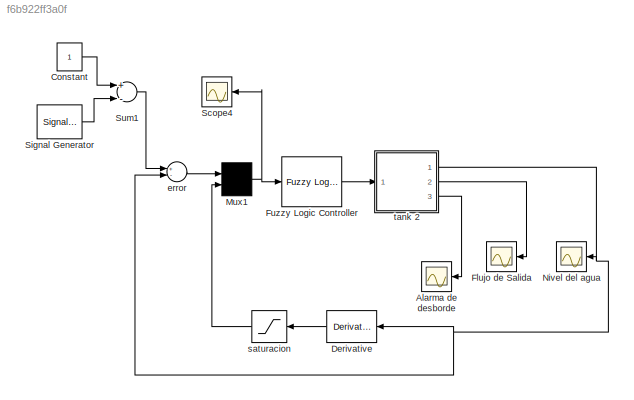
MODEL slx_f6b922ff3a0f
KIND model
CONFIG AbsTol = auto
CONFIG FixedStep = auto
CONFIG MaxStep = auto
CONFIG MinStep = auto
CONFIG RelTol = 1e-3
CONFIG SampleTimeConstraint = Unconstrained
CONFIG Solver = VariableStepAuto
CONFIG SolverMode = Auto
CONFIG SolverName = VariableStepAuto
CONFIG StartTime = 0.0
CONFIG StopTime = 5000
BLOCK [Scope] Alarma de desborde
  Ports = [1]
  ScopeSpecificationString = Simulink.scopes.TimeScopeBlockCfg('CurrentConfiguration', extmgr.ConfigurationSet(extmgr.Configuration('Core','General UI',true),extmgr.Configuration('Core','Source UI',true),extmgr.Configuration('Sources','WiredSimulink',true,'DataLoggingSaveFormat','Array','DataLoggingLimitDataPoints',true,'DataLoggingDecimation','1','DataLoggingDecimateData',true,'DataLoggingVariableName','ScopeData4'),extmgr.C...<+1753ch>
BLOCK [Constant] Constant
BLOCK [Derivative] Derivative
BLOCK [Scope] Flujo de Salida
  Ports = [1]
  ScopeSpecificationString = Simulink.scopes.TimeScopeBlockCfg('CurrentConfiguration', extmgr.ConfigurationSet(extmgr.Configuration('Core','General UI',true),extmgr.Configuration('Core','Source UI',true),extmgr.Configuration('Sources','WiredSimulink',true,'DataLoggingSaveFormat','Array','DataLoggingLimitDataPoints',true,'DataLoggingDecimation','1','DataLoggingDecimateData',true,'DataLoggingVariableName','ScopeData5'),extmgr.C...<+1753ch>
BLOCK [Reference] Fuzzy Logic Controller  REF=fuzblock/Fuzzy Logic   (lib defined in mdl_858b3b3e7478)
Controller
  Ports = [1, 1]
  SourceBlock = fuzblock/Fuzzy Logic \nController
  SourceType = FIS
BLOCK [Mux] Mux1
  Inputs = 2
  Ports = [2, 1]
BLOCK [Scope] Nivel del agua
  Ports = [1]
  ScopeSpecificationString = Simulink.scopes.TimeScopeBlockCfg('CurrentConfiguration', extmgr.ConfigurationSet(extmgr.Configuration('Core','General UI',true),extmgr.Configuration('Core','Source UI',true),extmgr.Configuration('Sources','WiredSimulink',true,'DataLoggingSaveFormat','Array','DataLoggingLimitDataPoints',true,'DataLoggingDecimation','1','DataLoggingDecimateData',true,'DataLoggingVariableName','ScopeData6'),extmgr.C...<+1771ch>
BLOCK [Scope] Scope4
  Ports = [1]
  ScopeSpecificationString = Simulink.scopes.TimeScopeBlockCfg('CurrentConfiguration', extmgr.ConfigurationSet(extmgr.Configuration('Core','General UI',true),extmgr.Configuration('Core','Source UI',true),extmgr.Configuration('Sources','WiredSimulink',true,'DataLoggingSaveFormat','Array','DataLoggingLimitDataPoints',true,'DataLoggingDecimation','1','DataLoggingDecimateData',true,'DataLoggingVariableName','ScopeData3'),extmgr.C...<+1763ch>
BLOCK [SignalGenerator] Signal Generator
  Amplitude = 0.5
  Frequency = 0.5
  Ports = [0, 1]
  Units = rad/sec
  WaveForm = square
BLOCK [Sum] Sum1
  Inputs = +-
  Ports = [2, 1]
BLOCK [Sum] error
  Inputs = +-
  Ports = [2, 1]
BLOCK [Saturate] saturacion
  InputPortMap = u0
  LowerLimit = -0.1
  Ports = [1, 1]
  UpperLimit = 0.1
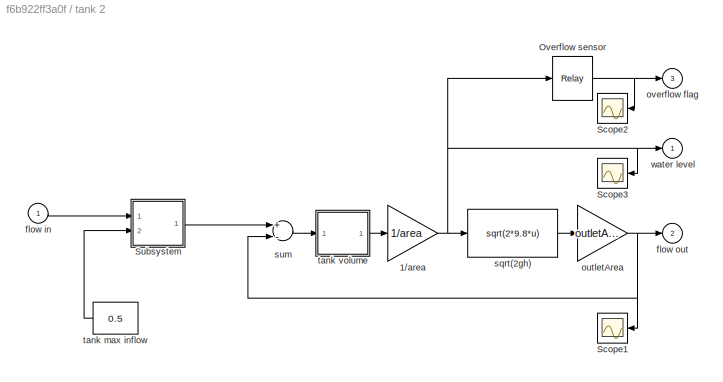
BLOCK [SubSystem] tank 2
  Ports = [1, 3]
  RequestExecContextInheritance = off
  ShowPortLabels = none
  Variant = off
BLOCK [Gain] tank 2/1//area
  Gain = 1/area
BLOCK [Relay] tank 2/Overflow sensor
  OffSwitchValue = ht - overflowLimit
  OnSwitchValue = ht - overflowLimit
BLOCK [Scope] tank 2/Scope1
  Ports = [1]
  ScopeSpecificationString = Simulink.scopes.TimeScopeBlockCfg('CurrentConfiguration', extmgr.ConfigurationSet(extmgr.Configuration('Core','General UI',true),extmgr.Configuration('Core','Source UI',true),extmgr.Configuration('Sources','WiredSimulink',true,'DataLoggingSaveFormat','Array','DataLoggingLimitDataPoints',true,'DataLoggingDecimation','1','DataLoggingDecimateData',true,'DataLoggingVariableName','ScopeData1'),extmgr.C...<+1756ch>
BLOCK [Scope] tank 2/Scope2
  Ports = [1]
  ScopeSpecificationString = Simulink.scopes.TimeScopeBlockCfg('CurrentConfiguration', extmgr.ConfigurationSet(extmgr.Configuration('Core','General UI',true),extmgr.Configuration('Core','Source UI',true),extmgr.Configuration('Sources','WiredSimulink',true,'DataLoggingSaveFormat','Array','DataLoggingLimitDataPoints',true,'DataLoggingDecimation','1','DataLoggingDecimateData',true),extmgr.Configuration('Visuals','Time Domain',tr...<+1722ch>
BLOCK [Scope] tank 2/Scope3
  Ports = [1]
  ScopeSpecificationString = Simulink.scopes.TimeScopeBlockCfg('CurrentConfiguration', extmgr.ConfigurationSet(extmgr.Configuration('Core','General UI',true),extmgr.Configuration('Core','Source UI',true),extmgr.Configuration('Sources','WiredSimulink',true,'DataLoggingSaveFormat','Array','DataLoggingLimitDataPoints',true,'DataLoggingDecimation','1','DataLoggingDecimateData',true,'DataLoggingVariableName','ScopeData2'),extmgr.C...<+1750ch>
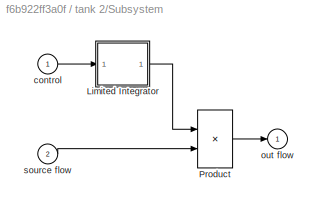
BLOCK [SubSystem] tank 2/Subsystem
  Ports = [2, 1]
  RequestExecContextInheritance = off
  ShowPortLabels = none
  Variant = off
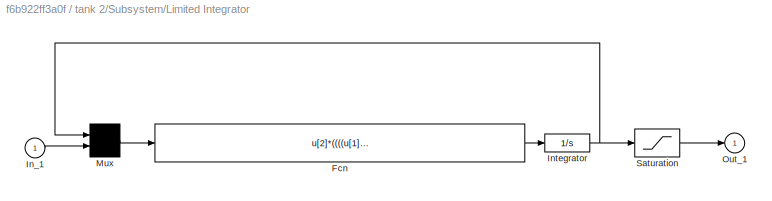
BLOCK [SubSystem] tank 2/Subsystem/Limited Integrator
  Ports = [1, 1]
  RequestExecContextInheritance = off
  ShowPortLabels = none
  Variant = off
BLOCK [Fcn] tank 2/Subsystem/Limited Integrator/Fcn
  Expr = u[2]*((((u[1]>lb)+(u[2]>=0))>0) * (((u[1]<ub)+(u[2]<=0))>0))
BLOCK [Inport] tank 2/Subsystem/Limited Integrator/In_1
  IconDisplay = Port number
BLOCK [Integrator] tank 2/Subsystem/Limited Integrator/Integrator
  InitialCondition = xi
  Ports = [1, 1]
BLOCK [Mux] tank 2/Subsystem/Limited Integrator/Mux
  Inputs = 2
  Ports = [2, 1]
BLOCK [Outport] tank 2/Subsystem/Limited Integrator/Out_1
  IconDisplay = Port number
  InitialOutput = 0
BLOCK [Saturate] tank 2/Subsystem/Limited Integrator/Saturation
  InputPortMap = u0
  LowerLimit = lb
  Ports = [1, 1]
  UpperLimit = ub
BLOCK [Product] tank 2/Subsystem/Product
  Ports = [2, 1]
BLOCK [Inport] tank 2/Subsystem/control
  IconDisplay = Port number
BLOCK [Outport] tank 2/Subsystem/out flow
  IconDisplay = Port number
  InitialOutput = 0
BLOCK [Inport] tank 2/Subsystem/source flow
  IconDisplay = Port number
  Port = 2
BLOCK [Inport] tank 2/flow in
  IconDisplay = Port number
BLOCK [Outport] tank 2/flow out
  IconDisplay = Port number
  InitialOutput = 0
  Port = 2
BLOCK [Gain] tank 2/outletArea
  Gain = outletArea
BLOCK [Outport] tank 2/overflow flag
  IconDisplay = Port number
  InitialOutput = 0
  Port = 3
BLOCK [Fcn] tank 2/sqrt(2gh)
  Expr = sqrt(2*9.8*u)
BLOCK [Sum] tank 2/sum
  Inputs = +-
  Ports = [2, 1]
BLOCK [Constant] tank 2/tank max inflow
  Value = 0.5
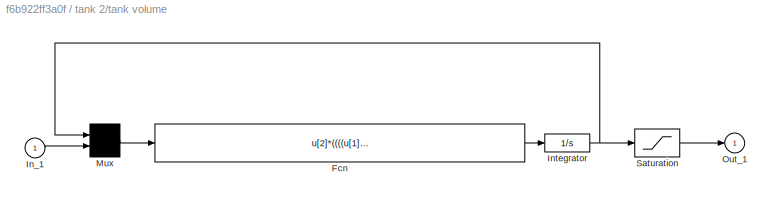
BLOCK [SubSystem] tank 2/tank volume
  Ports = [1, 1]
  RequestExecContextInheritance = off
  ShowPortLabels = none
  Variant = off
BLOCK [Fcn] tank 2/tank volume/Fcn
  Expr = u[2]*((((u[1]>lb)+(u[2]>=0))>0) * (((u[1]<ub)+(u[2]<=0))>0))
BLOCK [Inport] tank 2/tank volume/In_1
  IconDisplay = Port number
BLOCK [Integrator] tank 2/tank volume/Integrator
  InitialCondition = xi
  Ports = [1, 1]
BLOCK [Mux] tank 2/tank volume/Mux
  Inputs = 2
  Ports = [2, 1]
BLOCK [Outport] tank 2/tank volume/Out_1
  IconDisplay = Port number
  InitialOutput = 0
BLOCK [Saturate] tank 2/tank volume/Saturation
  InputPortMap = u0
  LowerLimit = lb
  Ports = [1, 1]
  UpperLimit = ub
BLOCK [Outport] tank 2/water level
  IconDisplay = Port number
  InitialOutput = 0
LINE Constant:1 -> Sum1:1
LINE Derivative:1 -> saturacion:1
LINE Fuzzy Logic Controller:1 -> tank 2:1
NET Mux1:1 -> Fuzzy Logic Controller:1, Scope4:1
LINE Signal Generator:1 -> Sum1:2
LINE Sum1:1 -> error:1
LINE error:1 -> Mux1:1
LINE saturacion:1 -> Mux1:2
NET tank 2/1//area:1 -> tank 2/Overflow sensor:1, tank 2/Scope3:1, tank 2/sqrt(2gh):1, tank 2/water level:1
NET tank 2/Overflow sensor:1 -> tank 2/Scope2:1, tank 2/overflow flag:1
LINE tank 2/Subsystem/Limited Integrator/Fcn:1 -> tank 2/Subsystem/Limited Integrator/Integrator:1
LINE tank 2/Subsystem/Limited Integrator/In_1:1 -> tank 2/Subsystem/Limited Integrator/Mux:2
NET tank 2/Subsystem/Limited Integrator/Integrator:1 -> tank 2/Subsystem/Limited Integrator/Mux:1, tank 2/Subsystem/Limited Integrator/Saturation:1
LINE tank 2/Subsystem/Limited Integrator/Mux:1 -> tank 2/Subsystem/Limited Integrator/Fcn:1
LINE tank 2/Subsystem/Limited Integrator/Saturation:1 -> tank 2/Subsystem/Limited Integrator/Out_1:1
LINE tank 2/Subsystem/Limited Integrator:1 -> tank 2/Subsystem/Product:1
LINE tank 2/Subsystem/Product:1 -> tank 2/Subsystem/out flow:1
LINE tank 2/Subsystem/control:1 -> tank 2/Subsystem/Limited Integrator:1
LINE tank 2/Subsystem/source flow:1 -> tank 2/Subsystem/Product:2
LINE tank 2/Subsystem:1 -> tank 2/sum:1
LINE tank 2/flow in:1 -> tank 2/Subsystem:1
NET tank 2/outletArea:1 -> tank 2/Scope1:1, tank 2/flow out:1, tank 2/sum:2
LINE tank 2/sqrt(2gh):1 -> tank 2/outletArea:1
LINE tank 2/sum:1 -> tank 2/tank volume:1
LINE tank 2/tank max inflow:1 -> tank 2/Subsystem:2
LINE tank 2/tank volume/Fcn:1 -> tank 2/tank volume/Integrator:1
LINE tank 2/tank volume/In_1:1 -> tank 2/tank volume/Mux:2
NET tank 2/tank volume/Integrator:1 -> tank 2/tank volume/Mux:1, tank 2/tank volume/Saturation:1
LINE tank 2/tank volume/Mux:1 -> tank 2/tank volume/Fcn:1
LINE tank 2/tank volume/Saturation:1 -> tank 2/tank volume/Out_1:1
LINE tank 2/tank volume:1 -> tank 2/1//area:1
NET tank 2:1 -> Derivative:1, Nivel del agua:1, error:2
LINE tank 2:2 -> Flujo de Salida:1
LINE tank 2:3 -> Alarma de desborde:1
note: NET lines group one-source signal fan-out (src -> all destinations, sorted); 1:1 wires keep LINE
